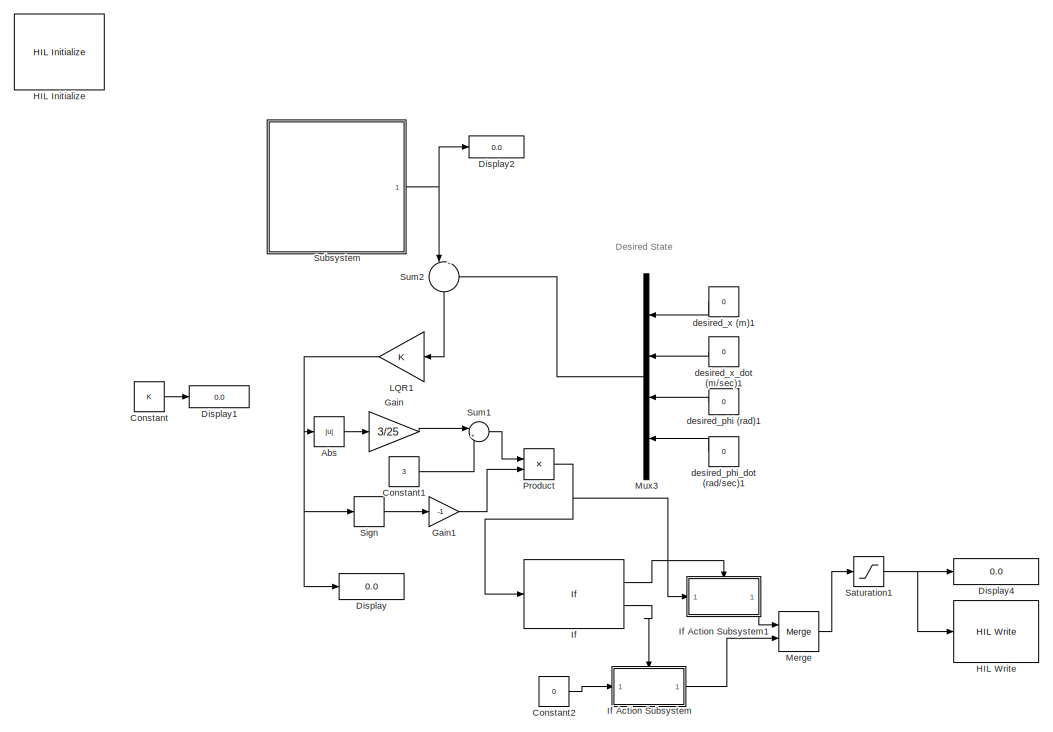
[diagram: root canvas - part 1/2, left side, full height]
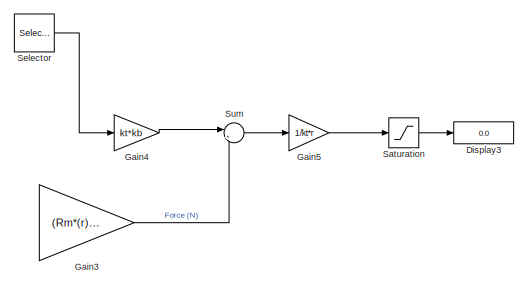
[diagram: root canvas - part 2/2, middle right region]
MODEL slx_f2d5963c06ed
KIND model
CONFIG AbsTol = auto
CONFIG EnableMultiTasking = on
CONFIG FixedStep = 0.002
CONFIG MaxStep = auto
CONFIG MinStep = auto
CONFIG RelTol = 1e-3
CONFIG SampleTimeConstraint = Unconstrained
CONFIG SolverName = FixedStepDiscrete
CONFIG StartTime = 0.0
CONFIG StopTime = inf
BLOCK [Abs] Abs
  SaturateOnIntegerOverflow = off
BLOCK [Constant] Constant
  Value = K
BLOCK [Constant] Constant1
  Value = 3
BLOCK [Constant] Constant2
  Value = 0
BLOCK [Display] Display
  Decimation = 1
  Ports = [1]
BLOCK [Display] Display1
  Decimation = 1
  Ports = [1]
BLOCK [Display] Display2
  Decimation = 1
  Ports = [1]
BLOCK [Display] Display3
  Decimation = 1
  Ports = [1]
BLOCK [Display] Display4
  Decimation = 20
  Ports = [1]
BLOCK [Gain] Gain
  Gain = 3/25
  OutDataTypeStr = double
BLOCK [Gain] Gain1
  Gain = -1
BLOCK [Gain] Gain3
  Gain = (Rm*(r)^2)
BLOCK [Gain] Gain4
  Gain = kt*kb
BLOCK [Gain] Gain5
  Gain = 1/kt*r
BLOCK [Reference] HIL Initialize  REF=quarc_library/Data Acquisition/Generic/Configuration/HIL Initialize
  AttributesFormatString = %<object_name> (%<board_type>-%<board_number>)
  Ports = []
  SourceBlock = quarc_library/Data Acquisition/Generic/Configuration/HIL Initialize
  SourceProductName = QUARC Targets
  SourceType = HIL Initialize
  UserDataPersistent = on
BLOCK [Reference] HIL Write  REF=quarc_library/Data Acquisition/Generic/Immediate I//O/HIL Write
  AttributesFormatString = (%<object_name>)
  Ports = [1]
  SourceBlock = quarc_library/Data Acquisition/Generic/Immediate I//O/HIL Write
  SourceProductName = QUARC Targets
  SourceType = HIL Write
  UserDataPersistent = on
BLOCK [If] If
  IfExpression = -3.2 < u1 < 3.2
  Ports = [1, 2]
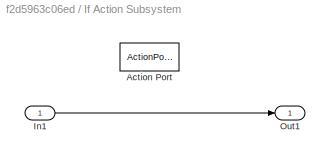
BLOCK [SubSystem] If Action Subsystem
  Ports = [1, 1, 0, 0, 0, 0, 0, 1]
  RequestExecContextInheritance = off
  TreatAsAtomicUnit = on
BLOCK [ActionPort] If Action Subsystem/Action Port
  ActionPortLabel = else
BLOCK [Inport] If Action Subsystem/In1
BLOCK [Outport] If Action Subsystem/Out1
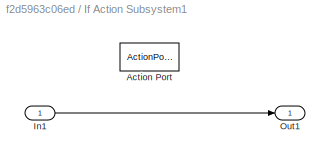
BLOCK [SubSystem] If Action Subsystem1
  Ports = [1, 1, 0, 0, 0, 0, 0, 1]
  RequestExecContextInheritance = off
  TreatAsAtomicUnit = on
BLOCK [ActionPort] If Action Subsystem1/Action Port
  ActionPortLabel = if(-3.2 < u1 < 3.2)
BLOCK [Inport] If Action Subsystem1/In1
BLOCK [Outport] If Action Subsystem1/Out1
BLOCK [Gain] LQR1
  Gain = K
  Multiplication = Matrix(K*u) (u vector)
BLOCK [Merge] Merge
  Ports = [2, 1]
BLOCK [Mux] Mux3
  DisplayOption = bar
  Ports = [4, 1]
BLOCK [Product] Product
  Ports = [2, 1]
BLOCK [Saturate] Saturation
  LowerLimit = -4
  UpperLimit = 4
BLOCK [Saturate] Saturation1
  LowerLimit = -6
  UpperLimit = 6
BLOCK [Selector] Selector
  IndexOptions = Index vector (dialog)
  Indices = [2]
  InputPortWidth = 4
  OutputSizes = 1
  Ports = [1, 1]
BLOCK [Signum] Sign
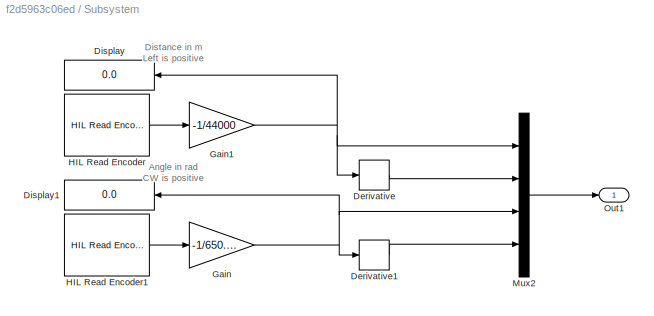
BLOCK [SubSystem] Subsystem
  Ports = [0, 1]
  RequestExecContextInheritance = off
BLOCK [Derivative] Subsystem/Derivative
BLOCK [Derivative] Subsystem/Derivative1
BLOCK [Display] Subsystem/Display
  Decimation = 1
  Ports = [1]
BLOCK [Display] Subsystem/Display1
  Decimation = 1
  Ports = [1]
BLOCK [Gain] Subsystem/Gain
  Gain = -1/650.94
BLOCK [Gain] Subsystem/Gain1
  Gain = -1/44000
BLOCK [Reference] Subsystem/HIL Read Encoder  REF=quarc_library/Data Acquisition/Generic/Immediate I//O/HIL Read Encoder
  AttributesFormatString = (%<object_name>)
  Ports = [0, 1]
  SourceBlock = quarc_library/Data Acquisition/Generic/Immediate I//O/HIL Read Encoder
  SourceProductName = QUARC Targets
  SourceType = HIL Read Encoder
  UserDataPersistent = on
BLOCK [Reference] Subsystem/HIL Read Encoder1  REF=quarc_library/Data Acquisition/Generic/Immediate I//O/HIL Read Encoder
  AttributesFormatString = (%<object_name>)
  Ports = [0, 1]
  SourceBlock = quarc_library/Data Acquisition/Generic/Immediate I//O/HIL Read Encoder
  SourceProductName = QUARC Targets
  SourceType = HIL Read Encoder
  UserDataPersistent = on
BLOCK [Mux] Subsystem/Mux2
  DisplayOption = bar
  Ports = [4, 1]
BLOCK [Outport] Subsystem/Out1
BLOCK [Sum] Sum
  Inputs = |++
  Ports = [2, 1]
BLOCK [Sum] Sum1
  Inputs = |++
  Ports = [2, 1]
BLOCK [Sum] Sum2
  Inputs = |-+
  NameLocation = left
  Ports = [2, 1]
BLOCK [Constant] desired_phi (rad)1
  Value = 0
BLOCK [Constant] desired_phi_dot (rad//sec)1
  Value = 0
BLOCK [Constant] desired_x (m)1
  Value = 0
BLOCK [Constant] desired_x_dot (m//sec)1
  Value = 0
ANNOTATION (root): Desired State
ANNOTATION Subsystem: Angle in rad CW is positive
ANNOTATION Subsystem: Distance in m Left is positive
LINE Abs:1 -> Gain:1
LINE Constant1:1 -> Sum1:2
LINE Constant2:1 -> If Action Subsystem:1
LINE Constant:1 -> Display1:1
LINE Gain1:1 -> Product:2
LINE Gain3:1 -> Sum:2
LINE Gain4:1 -> Sum:1
LINE Gain5:1 -> Saturation:1
LINE Gain:1 -> Sum1:1
LINE If Action Subsystem/In1:1 -> If Action Subsystem/Out1:1
LINE If Action Subsystem1/In1:1 -> If Action Subsystem1/Out1:1
LINE If Action Subsystem1:1 -> Merge:1
LINE If Action Subsystem:1 -> Merge:2
LINE If:1 -> If Action Subsystem1:ifaction
LINE If:2 -> If Action Subsystem:ifaction
NET LQR1:1 -> Abs:1, Display:1, Sign:1
LINE Merge:1 -> Saturation1:1
LINE Mux3:1 -> Sum2:2
NET Product:1 -> If Action Subsystem1:1, If:1
NET Saturation1:1 -> Display4:1, HIL Write:1
LINE Saturation:1 -> Display3:1
LINE Selector:1 -> Gain4:1
LINE Sign:1 -> Gain1:1
LINE Subsystem/Derivative1:1 -> Subsystem/Mux2:4
LINE Subsystem/Derivative:1 -> Subsystem/Mux2:2
NET Subsystem/Gain1:1 -> Subsystem/Derivative:1, Subsystem/Display:1, Subsystem/Mux2:1
NET Subsystem/Gain:1 -> Subsystem/Derivative1:1, Subsystem/Display1:1, Subsystem/Mux2:3
LINE Subsystem/HIL Read Encoder1:1 -> Subsystem/Gain:1
LINE Subsystem/HIL Read Encoder:1 -> Subsystem/Gain1:1
LINE Subsystem/Mux2:1 -> Subsystem/Out1:1
NET Subsystem:1 -> Display2:1, Sum2:1
LINE Sum1:1 -> Product:1
LINE Sum2:1 -> LQR1:1
LINE Sum:1 -> Gain5:1
LINE desired_phi (rad)1:1 -> Mux3:3
LINE desired_phi_dot (rad//sec)1:1 -> Mux3:4
LINE desired_x (m)1:1 -> Mux3:1
LINE desired_x_dot (m//sec)1:1 -> Mux3:2
note: NET lines group one-source signal fan-out (src -> all destinations, sorted); 1:1 wires keep LINE
